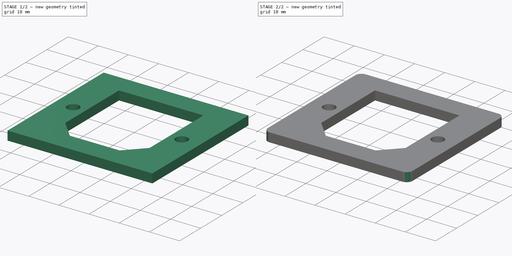
[diagram: build sequence overview — one tinted view per stage of 2, left to right]
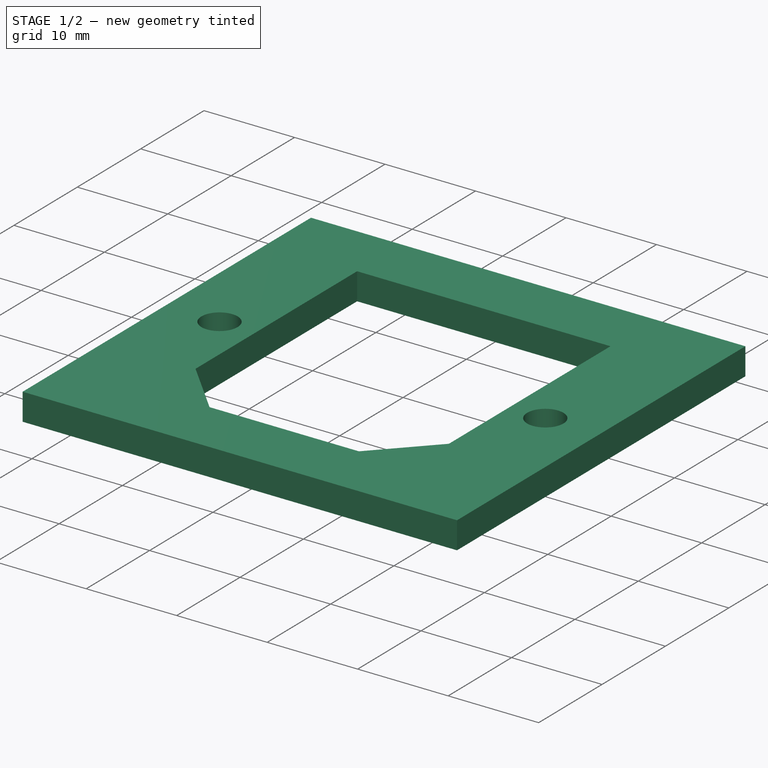
[diagram: stage 1 of 2 — iso view after this stage's code; geometry added in this stage tinted green]
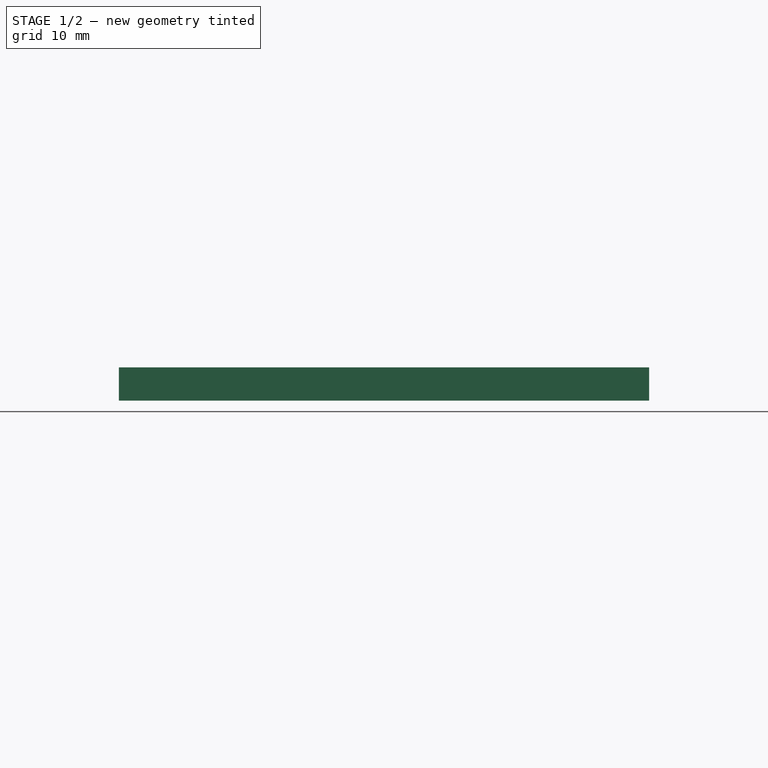
[diagram: stage 1 of 2 — front view after this stage's code; geometry added in this stage tinted green]
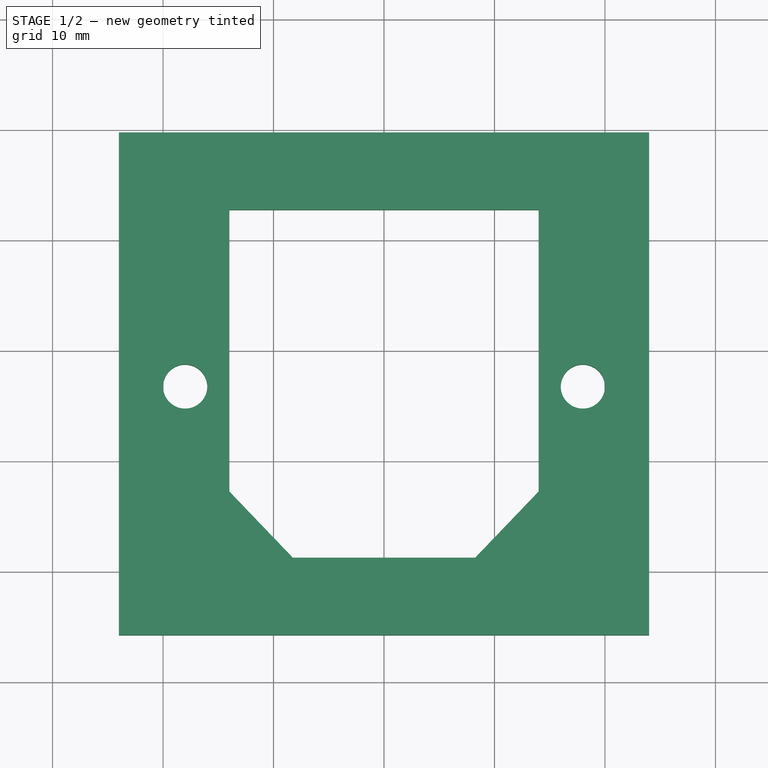
[diagram: stage 1 of 2 — top view after this stage's code; geometry added in this stage tinted green]
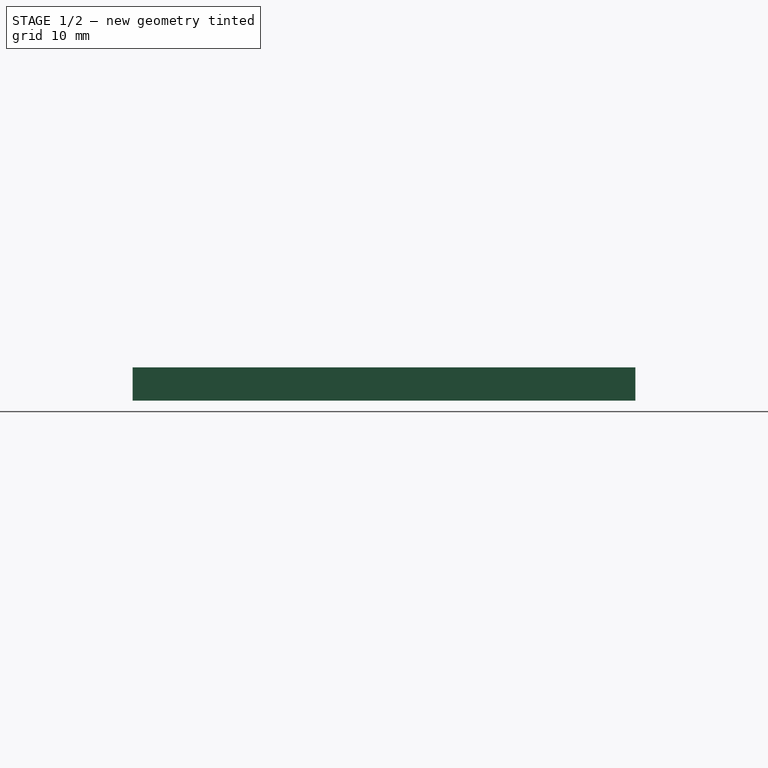
[diagram: stage 1 of 2 — right view after this stage's code; geometry added in this stage tinted green]
FCSTD DOCUMENT  (FreeCAD 0.20R29177 +426 (Git))
Label: AC Inlet Backing Plate
License: All rights reserved
LicenseURL: http://en.wikipedia.org/wiki/All_rights_reserved
objects: Sketcher::SketchObject×1, PartDesign::Pad×1, PartDesign::Fillet×1, PartDesign::Body×1
note: 6 computed .brp shape members not serialized (recipe doc carries the construction recipe); baked Part::Feature solids carry a one-line shape summary decoded from their .brp

FEATURE [Sketcher::SketchObject] Sketch
  FullyConstrained = true
  MapMode = 5
  Support = -> [XY_Plane]
  sketch-geometry (12):
    g0: LineSegment StartX=-14 StartY=12.75 StartZ=0 EndX=14 EndY=12.75 EndZ=0
    g1: LineSegment StartX=14 StartY=12.75 StartZ=0 EndX=14 EndY=-12.75 EndZ=0
    g2: LineSegment StartX=14 StartY=-12.75 StartZ=0 EndX=8.25 EndY=-18.75 EndZ=0
    g3: LineSegment StartX=8.25 StartY=-18.75 StartZ=0 EndX=-8.25 EndY=-18.75 EndZ=0
    g4: LineSegment StartX=-8.25 StartY=-18.75 StartZ=0 EndX=-14 EndY=-12.75 EndZ=0
    g5: LineSegment StartX=-14 StartY=-12.75 StartZ=0 EndX=-14 EndY=12.75 EndZ=0
    g6: LineSegment StartX=-24 StartY=19.75 StartZ=0 EndX=24 EndY=19.75 EndZ=0
    g7: LineSegment StartX=24 StartY=19.75 StartZ=0 EndX=24 EndY=-25.75 EndZ=0
    g8: LineSegment StartX=24 StartY=-25.75 StartZ=0 EndX=-24 EndY=-25.75 EndZ=0
    g9: LineSegment StartX=-24 StartY=-25.75 StartZ=0 EndX=-24 EndY=19.75 EndZ=0
    g10: Circle CenterX=-18 CenterY=-3.25 CenterZ=0 NormalX=0 NormalY=0 NormalZ=1 AngleXU=0 Radius=2
    g11: Circle CenterX=18 CenterY=-3.25 CenterZ=0 NormalX=0 NormalY=0 NormalZ=1 AngleXU=0 Radius=2
  constraints (33):
    c: Horizontal(g0)
    c: Coincident(g0,g1)
    c: Vertical(g1)
    c: Coincident(g1,g2)
    c: Coincident(g2,g3)
    c: Coincident(g3,g4)
    c: Coincident(g4,g5)
    c: Coincident(g5,g0)
    c: Vertical(g5)
    c: Symmetric(g0,g1,g-1)
    c: DistanceX(g0,g0) = 28
    c: DistanceY(g2,g0) = 31.5
    c: DistanceY(g1,g0) = 25.5
    c: Equal(g5,g1)
    c: DistanceX(g3,g3) = 16.5
    c: Symmetric(g3,g2,g-2)
    c: Coincident(g6,g7)
    c: Coincident(g7,g8)
    c: Coincident(g8,g9)
    c: Coincident(g9,g6)
    c: Horizontal(g6)
    c: Horizontal(g8)
    c: Vertical(g7)
    c: Vertical(g9)
    c: DistanceX(g0,g6) = 10
    c: DistanceY(g0,g6) = 7
    c: DistanceY(g7,g2) = 7
    c: DistanceX(g6,g0) = 10
    c: Diameter(g10) = 4
    c: DistanceX(g10,g0) = 4
    c: DistanceY(g10,g0) = 16
    c: Equal(g10,g11)
    c: Symmetric(g10,g11,g-2)
FEATURE [PartDesign::Pad] Pad
  Direction = (0,0,1)
  Length = 3
  Length2 = 10
  Profile = -> Sketch
  ReferenceAxis = -> Sketch [N_Axis]
  Type = 0
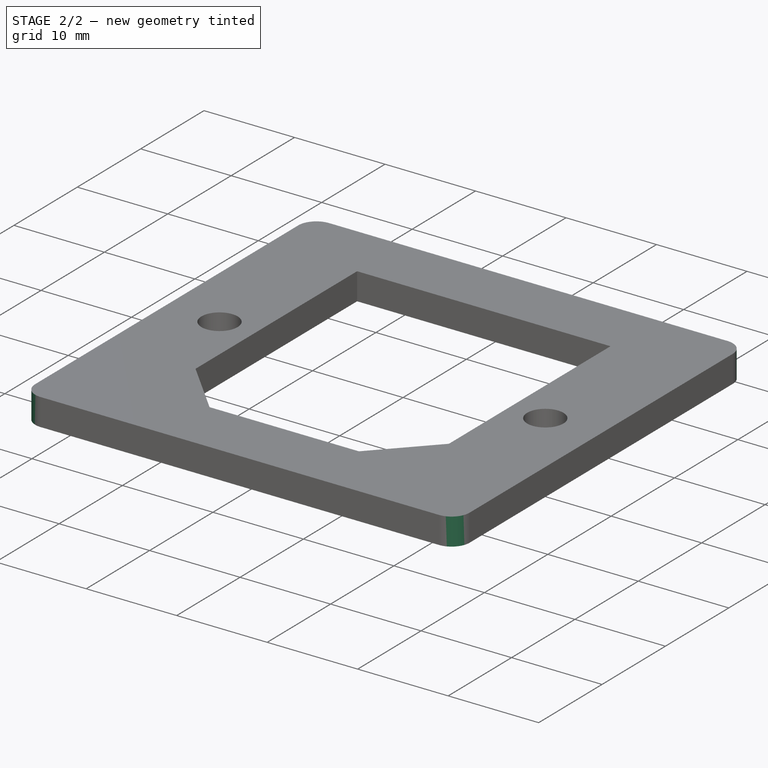
[diagram: stage 2 of 2 — iso view after this stage's code; geometry added in this stage tinted green]
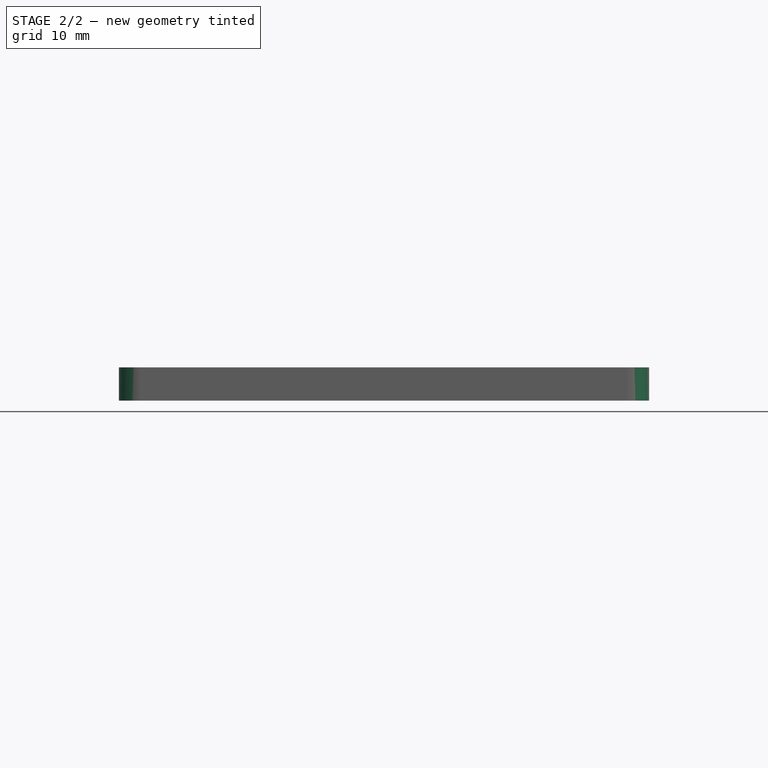
[diagram: stage 2 of 2 — front view after this stage's code; geometry added in this stage tinted green]
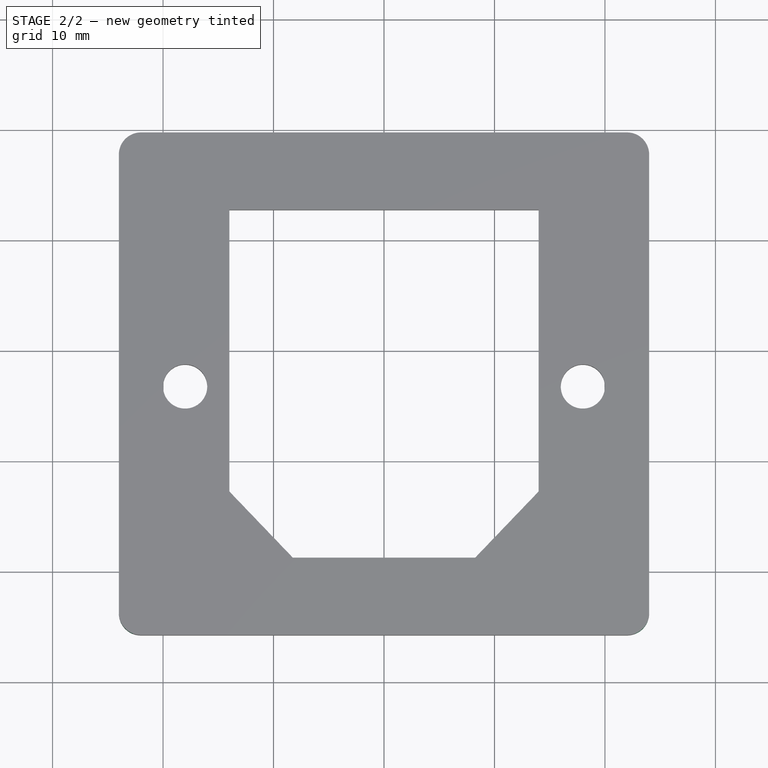
[diagram: stage 2 of 2 — top view after this stage's code; geometry added in this stage tinted green]
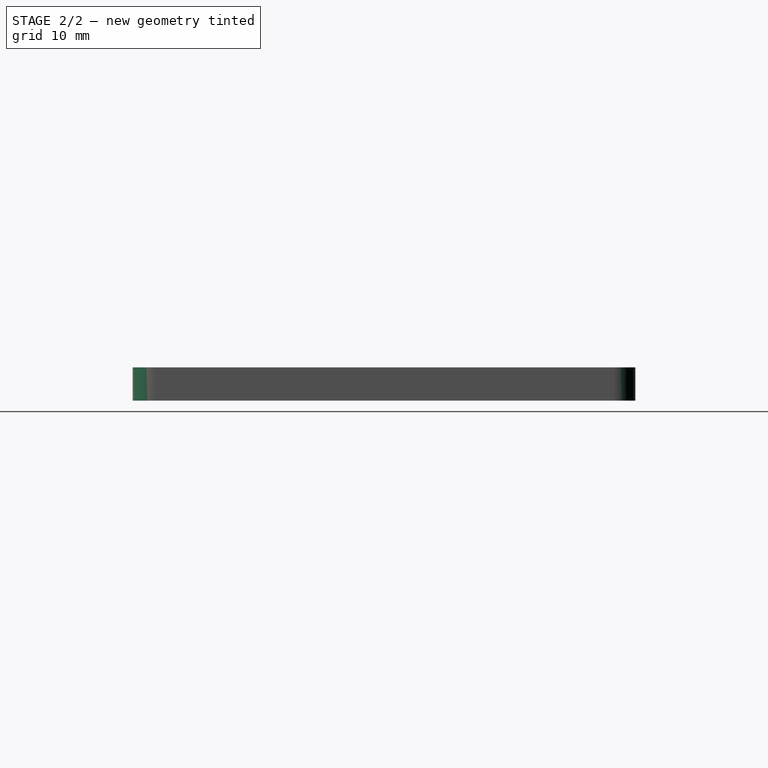
[diagram: stage 2 of 2 — right view after this stage's code; geometry added in this stage tinted green]
FEATURE [PartDesign::Fillet] Fillet
  Base = -> Pad [Edge8,Edge5,Edge2,Edge1]
  BaseFeature = -> Pad
  Radius = 2
  SupportTransform = false
  UseAllEdges = false
FEATURE [PartDesign::Body] Body
  Group = -> [Sketch,Pad,Fillet]
  Origin = -> Origin
  Tip = -> Fillet
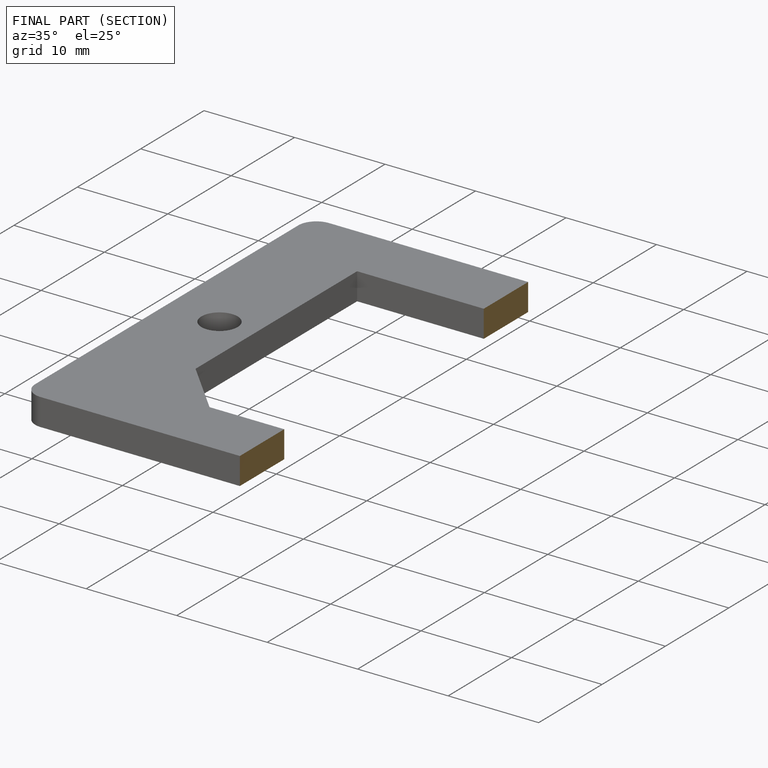
[diagram: finished part — half-section view (interior)]
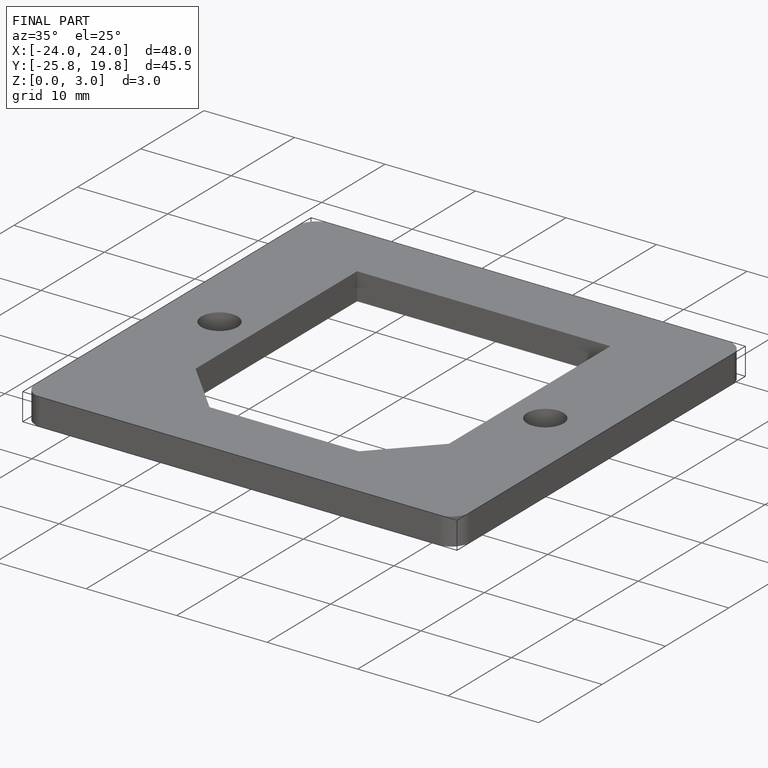
[diagram: finished part — iso view with bounding-box wireframe]
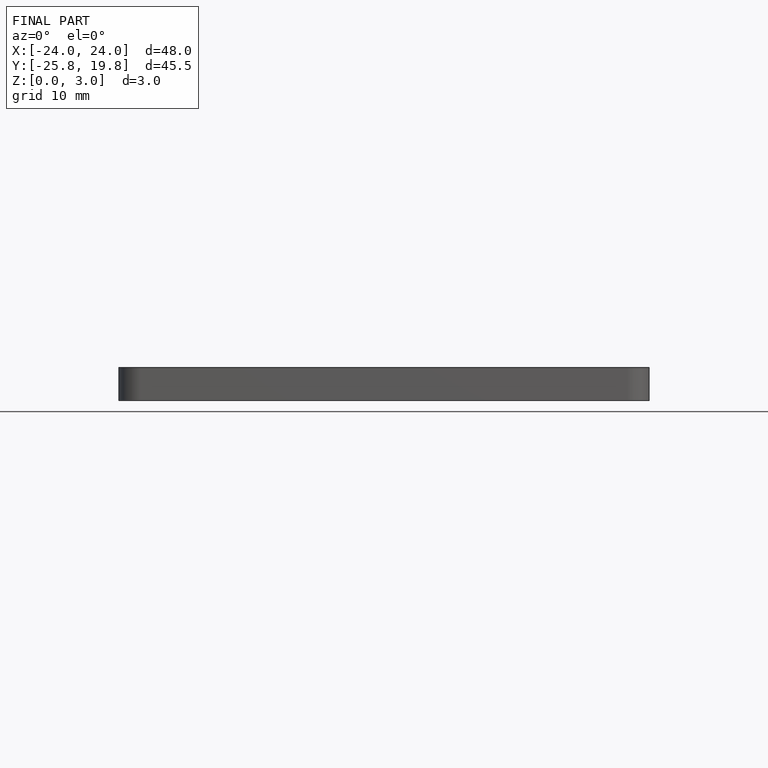
[diagram: finished part — front view with bounding-box wireframe]
